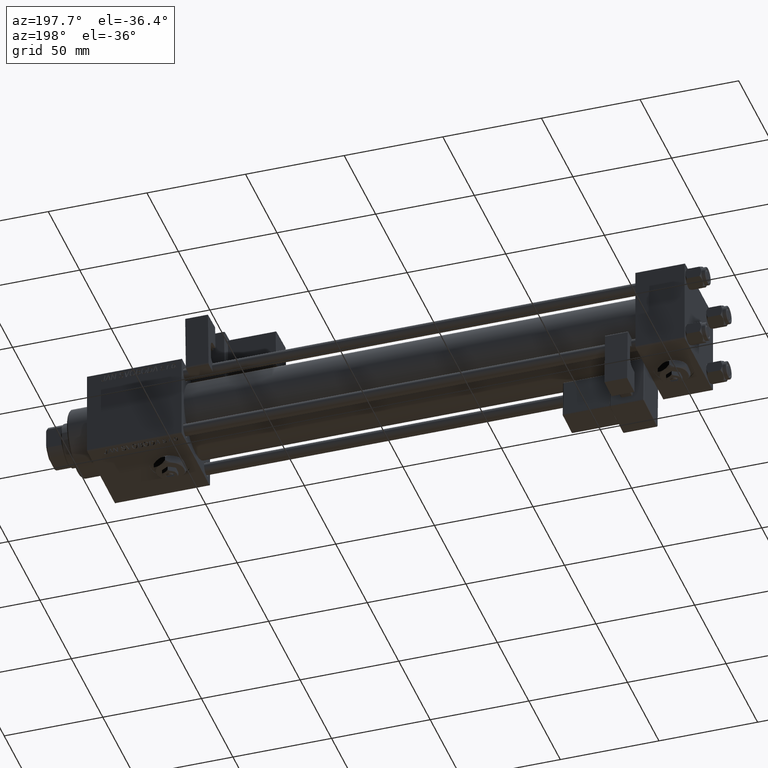
[diagram: clean part render]
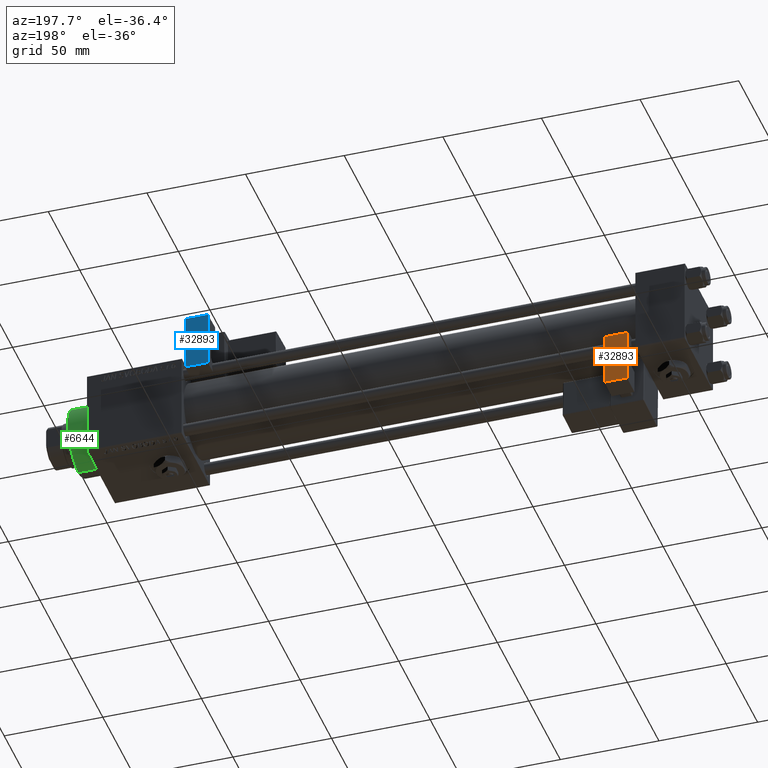
[diagram: same view with three faces highlighted in distinct colors, each labeled with its STEP entity id]
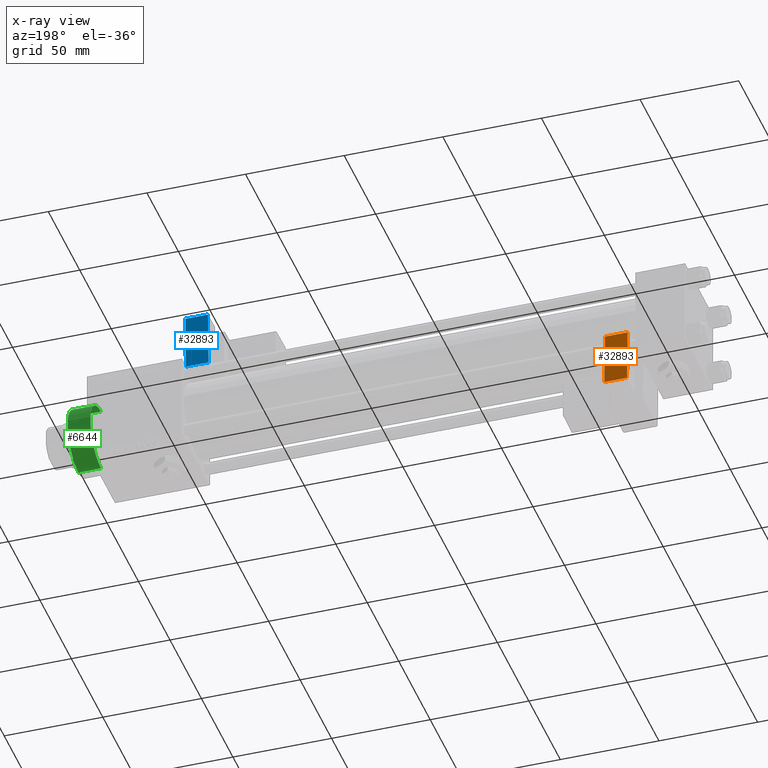
[diagram: x-ray of the same camera — body ghosted, the three highlighted faces saturated]
A machine part, auxiliary view with three faces highlighted in distinct colors.
The next image is the same camera in x-ray (body ghosted, the three faces saturated) — at least one of them is partly hidden behind the body in this view.
Their STEP definitions:

[orange] entity #32893 — the highlighted planar face has unit normal (0, -0.9994, -0.0353).
#635 = EDGE_LOOP ( 'NONE', ( #21097, #45358, #14999, #28061 ) ) ;
#1326 = CARTESIAN_POINT ( 'NONE',  ( 5.750000000000000000, 5.750000000000001776, 28.00000000000000000 ) ) ;
#2303 = LINE ( 'NONE', #31343, #28191 ) ;
#4453 = VERTEX_POINT ( 'NONE', #34457 ) ;
#6594 = CARTESIAN_POINT ( 'NONE',  ( -5.750000000000000000, 5.750000000000000000, 28.00000000000000000 ) ) ;
#10864 = EDGE_CURVE ( 'NONE', #4453, #17507, #34628, .T. ) ;
#13212 = DIRECTION ( 'NONE',  ( 1.508455196501571183E-16, -1.000000000000000000, 0.000000000000000000 ) ) ;
#13472 = CARTESIAN_POINT ( 'NONE',  ( -5.750000000000000000, 5.750000000000000000, 0.000000000000000000 ) ) ;
#13749 = PLANE ( 'NONE',  #22538 ) ;
#14999 = ORIENTED_EDGE ( 'NONE', *, *, #52572, .T. ) ;
#17140 = DIRECTION ( 'NONE',  ( 1.000000000000000000, 1.508455196501571183E-16, 0.000000000000000000 ) ) ;
#17507 = VERTEX_POINT ( 'NONE', #31358 ) ;
#17703 = CARTESIAN_POINT ( 'NONE',  ( -5.750000000000000000, 5.750000000000000000, 12.00000000000000000 ) ) ;
#21097 = ORIENTED_EDGE ( 'NONE', *, *, #33457, .F. ) ;
#21379 = FACE_OUTER_BOUND ( 'NONE', #635, .T. ) ;
#22538 = AXIS2_PLACEMENT_3D ( 'NONE', #17703, #13212, #17140 ) ;
#23483 = VECTOR ( 'NONE', #52123, 1000.000000000000000 ) ;
#28061 = ORIENTED_EDGE ( 'NONE', *, *, #10864, .T. ) ;
#28191 = VECTOR ( 'NONE', #48541, 1000.000000000000000 ) ;
#29722 = LINE ( 'NONE', #55676, #52300 ) ;
#30290 = DIRECTION ( 'NONE',  ( -0.000000000000000000, -0.000000000000000000, -1.000000000000000000 ) ) ;
#31343 = CARTESIAN_POINT ( 'NONE',  ( -5.750000000000000000, 5.750000000000000000, 28.00000000000000000 ) ) ;
#31358 = CARTESIAN_POINT ( 'NONE',  ( -5.750000000000000000, 5.750000000000000000, 0.000000000000000000 ) ) ;
#32893 = ADVANCED_FACE ( 'NONE', ( #21379 ), #13749, .F. ) ;
#33457 = EDGE_CURVE ( 'NONE', #40376, #17507, #38870, .T. ) ;
#34457 = CARTESIAN_POINT ( 'NONE',  ( 5.750000000000000000, 5.750000000000001776, 0.000000000000000000 ) ) ;
#34628 = LINE ( 'NONE', #13472, #53495 ) ;
#35169 = DIRECTION ( 'NONE',  ( -1.000000000000000000, -1.508455196501571429E-16, -0.000000000000000000 ) ) ;
#35185 = CARTESIAN_POINT ( 'NONE',  ( -5.750000000000000000, 5.750000000000000000, 12.00000000000000000 ) ) ;
#36586 = VERTEX_POINT ( 'NONE', #1326 ) ;
#38870 = LINE ( 'NONE', #35185, #23483 ) ;
#40376 = VERTEX_POINT ( 'NONE', #6594 ) ;
#42117 = EDGE_CURVE ( 'NONE', #40376, #36586, #2303, .T. ) ;
#45358 = ORIENTED_EDGE ( 'NONE', *, *, #42117, .T. ) ;
#48541 = DIRECTION ( 'NONE',  ( 1.000000000000000000, 1.508455196501571183E-16, -0.000000000000000000 ) ) ;
#52123 = DIRECTION ( 'NONE',  ( -0.000000000000000000, -0.000000000000000000, -1.000000000000000000 ) ) ;
#52300 = VECTOR ( 'NONE', #30290, 1000.000000000000000 ) ;
#52572 = EDGE_CURVE ( 'NONE', #36586, #4453, #29722, .T. ) ;
#53495 = VECTOR ( 'NONE', #35169, 1000.000000000000000 ) ;
#55676 = CARTESIAN_POINT ( 'NONE',  ( 5.750000000000000000, 5.750000000000001776, 12.00000000000000000 ) ) ;

[blue] entity #32893 — the highlighted planar face has unit normal (-0, -0.9994, 0.0353).
#635 = EDGE_LOOP ( 'NONE', ( #21097, #45358, #14999, #28061 ) ) ;
#1326 = CARTESIAN_POINT ( 'NONE',  ( 5.750000000000000000, 5.750000000000001776, 28.00000000000000000 ) ) ;
#2303 = LINE ( 'NONE', #31343, #28191 ) ;
#4453 = VERTEX_POINT ( 'NONE', #34457 ) ;
#6594 = CARTESIAN_POINT ( 'NONE',  ( -5.750000000000000000, 5.750000000000000000, 28.00000000000000000 ) ) ;
#10864 = EDGE_CURVE ( 'NONE', #4453, #17507, #34628, .T. ) ;
#13212 = DIRECTION ( 'NONE',  ( 1.508455196501571183E-16, -1.000000000000000000, 0.000000000000000000 ) ) ;
#13472 = CARTESIAN_POINT ( 'NONE',  ( -5.750000000000000000, 5.750000000000000000, 0.000000000000000000 ) ) ;
#13749 = PLANE ( 'NONE',  #22538 ) ;
#14999 = ORIENTED_EDGE ( 'NONE', *, *, #52572, .T. ) ;
#17140 = DIRECTION ( 'NONE',  ( 1.000000000000000000, 1.508455196501571183E-16, 0.000000000000000000 ) ) ;
#17507 = VERTEX_POINT ( 'NONE', #31358 ) ;
#17703 = CARTESIAN_POINT ( 'NONE',  ( -5.750000000000000000, 5.750000000000000000, 12.00000000000000000 ) ) ;
#21097 = ORIENTED_EDGE ( 'NONE', *, *, #33457, .F. ) ;
#21379 = FACE_OUTER_BOUND ( 'NONE', #635, .T. ) ;
#22538 = AXIS2_PLACEMENT_3D ( 'NONE', #17703, #13212, #17140 ) ;
#23483 = VECTOR ( 'NONE', #52123, 1000.000000000000000 ) ;
#28061 = ORIENTED_EDGE ( 'NONE', *, *, #10864, .T. ) ;
#28191 = VECTOR ( 'NONE', #48541, 1000.000000000000000 ) ;
#29722 = LINE ( 'NONE', #55676, #52300 ) ;
#30290 = DIRECTION ( 'NONE',  ( -0.000000000000000000, -0.000000000000000000, -1.000000000000000000 ) ) ;
#31343 = CARTESIAN_POINT ( 'NONE',  ( -5.750000000000000000, 5.750000000000000000, 28.00000000000000000 ) ) ;
#31358 = CARTESIAN_POINT ( 'NONE',  ( -5.750000000000000000, 5.750000000000000000, 0.000000000000000000 ) ) ;
#32893 = ADVANCED_FACE ( 'NONE', ( #21379 ), #13749, .F. ) ;
#33457 = EDGE_CURVE ( 'NONE', #40376, #17507, #38870, .T. ) ;
#34457 = CARTESIAN_POINT ( 'NONE',  ( 5.750000000000000000, 5.750000000000001776, 0.000000000000000000 ) ) ;
#34628 = LINE ( 'NONE', #13472, #53495 ) ;
#35169 = DIRECTION ( 'NONE',  ( -1.000000000000000000, -1.508455196501571429E-16, -0.000000000000000000 ) ) ;
#35185 = CARTESIAN_POINT ( 'NONE',  ( -5.750000000000000000, 5.750000000000000000, 12.00000000000000000 ) ) ;
#36586 = VERTEX_POINT ( 'NONE', #1326 ) ;
#38870 = LINE ( 'NONE', #35185, #23483 ) ;
#40376 = VERTEX_POINT ( 'NONE', #6594 ) ;
#42117 = EDGE_CURVE ( 'NONE', #40376, #36586, #2303, .T. ) ;
#45358 = ORIENTED_EDGE ( 'NONE', *, *, #42117, .T. ) ;
#48541 = DIRECTION ( 'NONE',  ( 1.000000000000000000, 1.508455196501571183E-16, -0.000000000000000000 ) ) ;
#52123 = DIRECTION ( 'NONE',  ( -0.000000000000000000, -0.000000000000000000, -1.000000000000000000 ) ) ;
#52300 = VECTOR ( 'NONE', #30290, 1000.000000000000000 ) ;
#52572 = EDGE_CURVE ( 'NONE', #36586, #4453, #29722, .T. ) ;
#53495 = VECTOR ( 'NONE', #35169, 1000.000000000000000 ) ;
#55676 = CARTESIAN_POINT ( 'NONE',  ( 5.750000000000000000, 5.750000000000001776, 12.00000000000000000 ) ) ;

[green] entity #6644 — the highlighted cylindrical surface (edge-blend (fillet) strip) has radius 17 mm, axis along (-1, -0, -0).
#2748 = EDGE_CURVE ( 'NONE', #53424, #38176, #36135, .T. ) ;
#2862 = CYLINDRICAL_SURFACE ( 'NONE', #29838, 17.00000000000000000 ) ;
#3610 = VECTOR ( 'NONE', #47326, 1000.000000000000000 ) ;
#4893 = AXIS2_PLACEMENT_3D ( 'NONE', #26460, #5312, #39677 ) ;
#5312 = DIRECTION ( 'NONE',  ( 0.000000000000000000, 0.000000000000000000, -1.000000000000000000 ) ) ;
#6644 = ADVANCED_FACE ( 'NONE', ( #14752 ), #2862, .T. ) ;
#7106 = DIRECTION ( 'NONE',  ( -1.000000000000000000, 0.000000000000000000, 0.000000000000000000 ) ) ;
#8747 = EDGE_CURVE ( 'NONE', #44568, #38176, #14852, .T. ) ;
#8980 = LINE ( 'NONE', #21938, #3610 ) ;
#11633 = EDGE_CURVE ( 'NONE', #44568, #17912, #13031, .T. ) ;
#11802 = AXIS2_PLACEMENT_3D ( 'NONE', #14862, #32058, #14577 ) ;
#13031 = CIRCLE ( 'NONE', #4893, 17.00000000000000000 ) ;
#14577 = DIRECTION ( 'NONE',  ( 1.000000000000000000, 0.000000000000000000, 0.000000000000000000 ) ) ;
#14752 = FACE_OUTER_BOUND ( 'NONE', #15174, .T. ) ;
#14852 = LINE ( 'NONE', #33325, #36290 ) ;
#14862 = CARTESIAN_POINT ( 'NONE',  ( 0.000000000000000000, 0.000000000000000000, 28.69999999999999929 ) ) ;
#15174 = EDGE_LOOP ( 'NONE', ( #28739, #52837, #47647, #43491 ) ) ;
#15604 = CARTESIAN_POINT ( 'NONE',  ( 17.00000000000000000, 2.081899558550500280E-15, 28.69999999999999929 ) ) ;
#17912 = VERTEX_POINT ( 'NONE', #26651 ) ;
#19636 = CARTESIAN_POINT ( 'NONE',  ( -17.00000000000000000, 0.000000000000000000, 28.69999999999999929 ) ) ;
#21938 = CARTESIAN_POINT ( 'NONE',  ( 17.00000000000000000, 2.081899558550500280E-15, 40.70000000000000284 ) ) ;
#26460 = CARTESIAN_POINT ( 'NONE',  ( 0.000000000000000000, 0.000000000000000000, 40.19999999999999574 ) ) ;
#26651 = CARTESIAN_POINT ( 'NONE',  ( 17.00000000000000000, 2.081899558550500280E-15, 40.19999999999999574 ) ) ;
#28739 = ORIENTED_EDGE ( 'NONE', *, *, #11633, .T. ) ;
#29838 = AXIS2_PLACEMENT_3D ( 'NONE', #36159, #32761, #7106 ) ;
#32058 = DIRECTION ( 'NONE',  ( 0.000000000000000000, 0.000000000000000000, 1.000000000000000000 ) ) ;
#32761 = DIRECTION ( 'NONE',  ( -0.000000000000000000, -0.000000000000000000, -1.000000000000000000 ) ) ;
#32916 = EDGE_CURVE ( 'NONE', #17912, #53424, #8980, .T. ) ;
#33325 = CARTESIAN_POINT ( 'NONE',  ( -17.00000000000000000, 0.000000000000000000, 40.70000000000000284 ) ) ;
#36135 = CIRCLE ( 'NONE', #11802, 17.00000000000000000 ) ;
#36159 = CARTESIAN_POINT ( 'NONE',  ( 0.000000000000000000, 0.000000000000000000, 40.70000000000000284 ) ) ;
#36290 = VECTOR ( 'NONE', #37824, 1000.000000000000000 ) ;
#37824 = DIRECTION ( 'NONE',  ( -0.000000000000000000, -0.000000000000000000, -1.000000000000000000 ) ) ;
#38176 = VERTEX_POINT ( 'NONE', #19636 ) ;
#39677 = DIRECTION ( 'NONE',  ( 1.000000000000000000, 0.000000000000000000, 0.000000000000000000 ) ) ;
#43491 = ORIENTED_EDGE ( 'NONE', *, *, #8747, .F. ) ;
#44568 = VERTEX_POINT ( 'NONE', #50968 ) ;
#47326 = DIRECTION ( 'NONE',  ( -0.000000000000000000, -0.000000000000000000, -1.000000000000000000 ) ) ;
#47647 = ORIENTED_EDGE ( 'NONE', *, *, #2748, .T. ) ;
#50968 = CARTESIAN_POINT ( 'NONE',  ( -17.00000000000000000, 0.000000000000000000, 40.19999999999999574 ) ) ;
#52837 = ORIENTED_EDGE ( 'NONE', *, *, #32916, .T. ) ;
#53424 = VERTEX_POINT ( 'NONE', #15604 ) ;